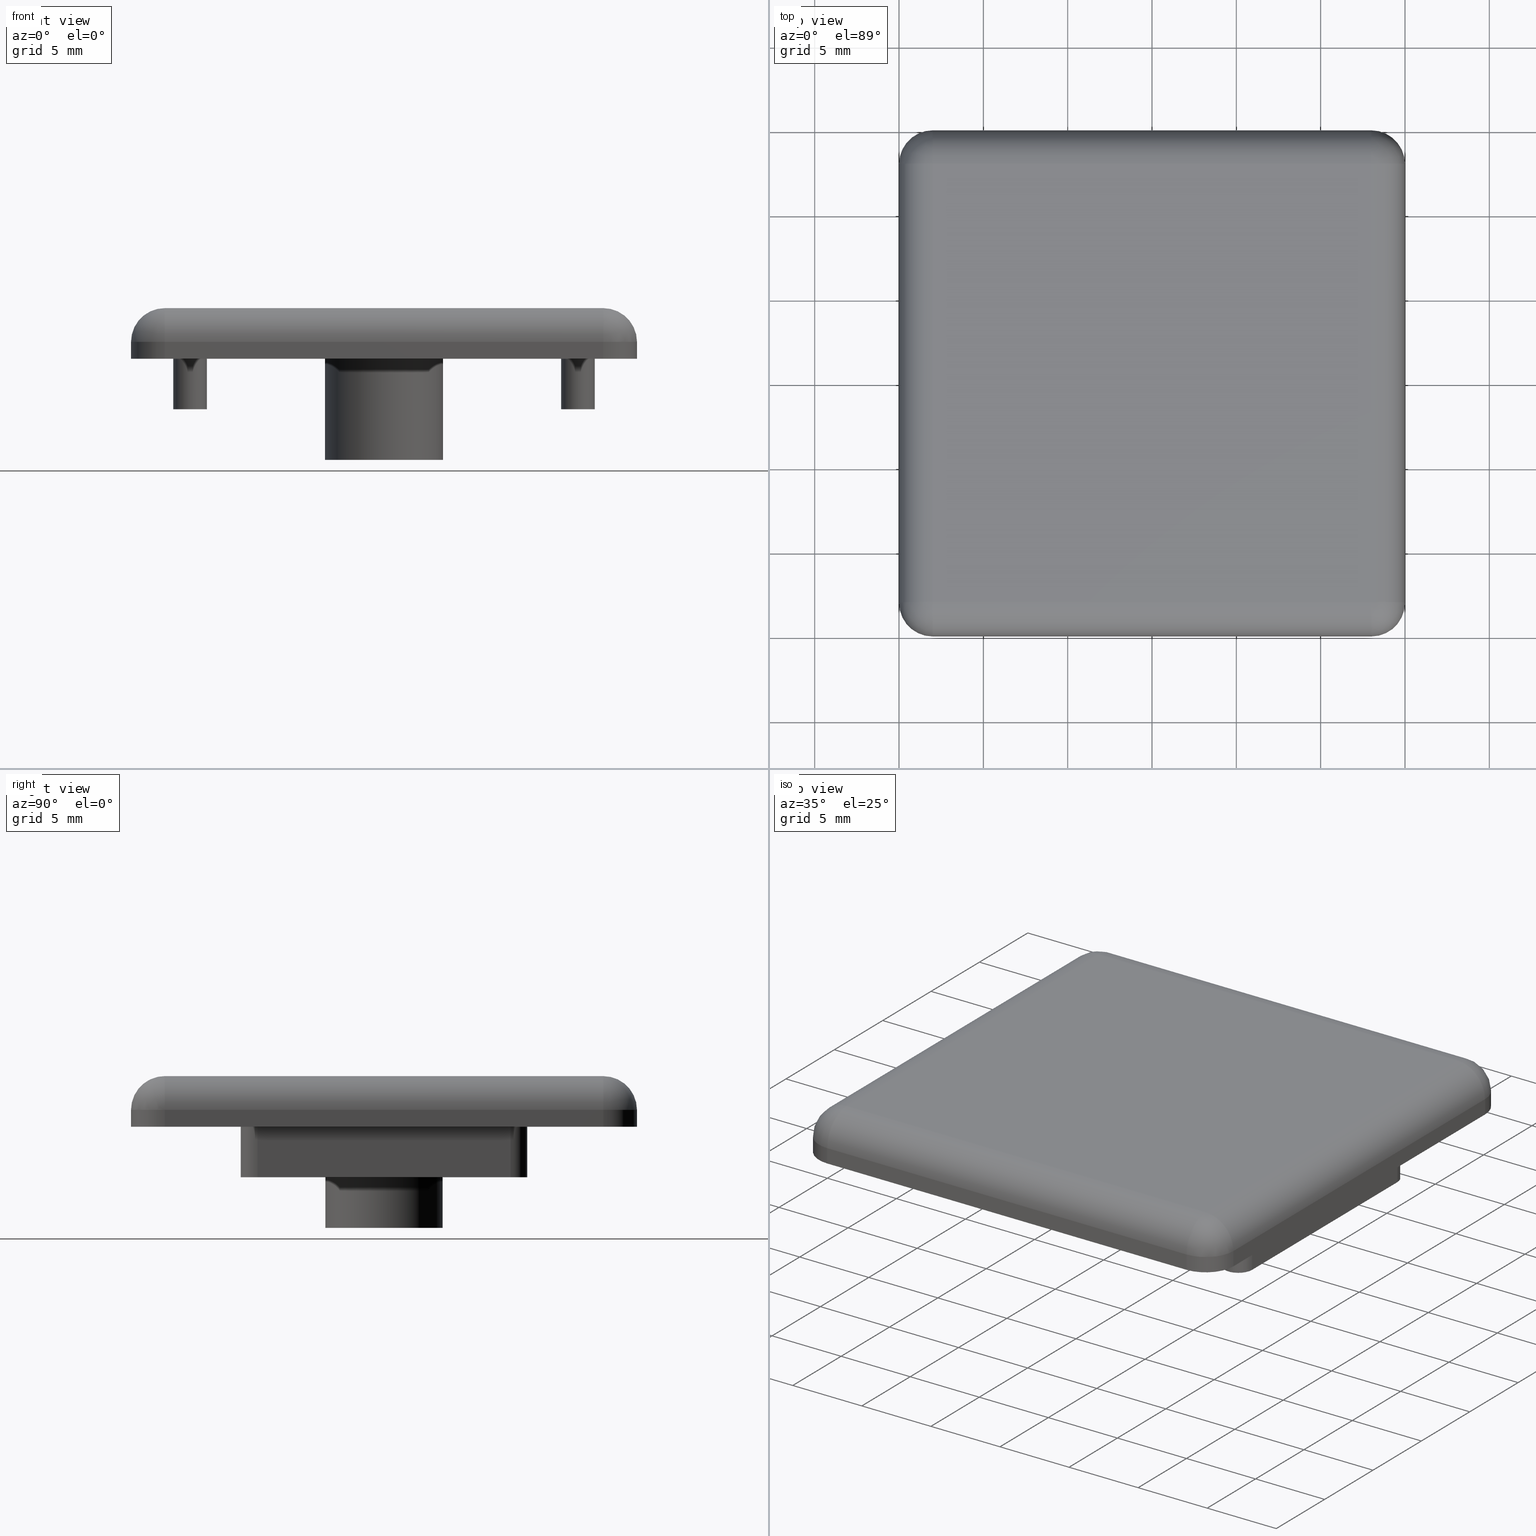
[diagram: canonical four-view strip — front | top / right | iso, engineering-drawing reading convention]
A machine part, canonical four-view strip (front | top / right | iso — engineering-drawing reading convention). The complete STEP part file that produces these views, byte-faithful:
ISO-10303-21;
HEADER;
/* Generated by software containing ST-Developer
 * from STEP Tools, Inc. (www.steptools.com) 
 */

FILE_DESCRIPTION(
/* description */ ('TAPPO 30X30 4C NERO'),
/* implementation_level */ '2;1');

FILE_NAME(
/* name */ 
'Q:\\Catalogo\\2_Accessori Dierre\\Per Download Web e catalogo cartace
o\\CATALOGO TAPPI DI CHIUSURA\\PAGINA 88\\DTPTR0000022_.stp',
/* time_stamp */ '2018-10-26T10:26:14+02:00',
/* author */ ('fzagni'),
/* organization */ (''),
/* preprocessor_version */ 'ST-DEVELOPER v16.1',
/* originating_system */ 'Autodesk Inventor 2016',
/* authorisation */ '');

FILE_SCHEMA (('AUTOMOTIVE_DESIGN { 1 0 10303 214 3 1 1 }'));
ENDSEC;

DATA;
#10=MECHANICAL_DESIGN_GEOMETRIC_PRESENTATION_REPRESENTATION('',(#13),#847);
#11=SHAPE_REPRESENTATION_RELATIONSHIP('SRR','None',#856,#12);
#12=ADVANCED_BREP_SHAPE_REPRESENTATION('',(#14),#846);
#13=STYLED_ITEM('',(#865),#14);
#14=MANIFOLD_SOLID_BREP('Solido1',#487);
#15=SPHERICAL_SURFACE('',#519,2.);
#16=SPHERICAL_SURFACE('',#524,2.);
#17=SPHERICAL_SURFACE('',#529,2.);
#18=SPHERICAL_SURFACE('',#535,2.);
#19=LINE('',#724,#55);
#20=LINE('',#728,#56);
#21=LINE('',#732,#57);
#22=LINE('',#735,#58);
#23=LINE('',#740,#59);
#24=LINE('',#743,#60);
#25=LINE('',#748,#61);
#26=LINE('',#751,#62);
#27=LINE('',#754,#63);
#28=LINE('',#757,#64);
#29=LINE('',#760,#65);
#30=LINE('',#761,#66);
#31=LINE('',#765,#67);
#32=LINE('',#767,#68);
#33=LINE('',#771,#69);
#34=LINE('',#774,#70);
#35=LINE('',#777,#71);
#36=LINE('',#778,#72);
#37=LINE('',#782,#73);
#38=LINE('',#784,#74);
#39=LINE('',#794,#75);
#40=LINE('',#795,#76);
#41=LINE('',#804,#77);
#42=LINE('',#805,#78);
#43=LINE('',#814,#79);
#44=LINE('',#815,#80);
#45=LINE('',#817,#81);
#46=LINE('',#818,#82);
#47=LINE('',#827,#83);
#48=LINE('',#828,#84);
#49=LINE('',#830,#85);
#50=LINE('',#831,#86);
#51=LINE('',#833,#87);
#52=LINE('',#834,#88);
#53=LINE('',#836,#89);
#54=LINE('',#837,#90);
#55=VECTOR('',#569,26.);
#56=VECTOR('',#572,26.);
#57=VECTOR('',#575,26.);
#58=VECTOR('',#578,26.);
#59=VECTOR('',#581,15.);
#60=VECTOR('',#584,15.);
#61=VECTOR('',#587,15.);
#62=VECTOR('',#590,15.);
#63=VECTOR('',#593,3.);
#64=VECTOR('',#596,3.);
#65=VECTOR('',#599,15.);
#66=VECTOR('',#600,3.);
#67=VECTOR('',#605,3.);
#68=VECTOR('',#608,15.);
#69=VECTOR('',#613,3.);
#70=VECTOR('',#616,3.);
#71=VECTOR('',#619,15.);
#72=VECTOR('',#620,3.);
#73=VECTOR('',#625,3.);
#74=VECTOR('',#628,15.);
#75=VECTOR('',#641,1.);
#76=VECTOR('',#642,1.);
#77=VECTOR('',#653,1.);
#78=VECTOR('',#654,1.);
#79=VECTOR('',#665,1.);
#80=VECTOR('',#666,1.);
#81=VECTOR('',#669,26.);
#82=VECTOR('',#670,26.);
#83=VECTOR('',#681,1.);
#84=VECTOR('',#682,1.);
#85=VECTOR('',#685,26.);
#86=VECTOR('',#686,26.);
#87=VECTOR('',#689,26.);
#88=VECTOR('',#690,26.);
#89=VECTOR('',#693,26.);
#90=VECTOR('',#694,26.);
#91=PLANE('',#495);
#92=PLANE('',#496);
#93=PLANE('',#507);
#94=PLANE('',#510);
#95=PLANE('',#511);
#96=PLANE('',#514);
#97=PLANE('',#517);
#98=PLANE('',#518);
#99=PLANE('',#543);
#100=PLANE('',#544);
#101=PLANE('',#545);
#102=PLANE('',#546);
#103=PLANE('',#547);
#104=PLANE('',#548);
#105=FACE_BOUND('',#144,.T.);
#106=FACE_BOUND('',#146,.T.);
#107=FACE_BOUND('',#148,.T.);
#108=FACE_BOUND('',#150,.T.);
#109=FACE_BOUND('',#151,.T.);
#110=FACE_BOUND('',#152,.T.);
#111=FACE_OUTER_BOUND('',#143,.T.);
#112=FACE_OUTER_BOUND('',#145,.T.);
#113=FACE_OUTER_BOUND('',#147,.T.);
#114=FACE_OUTER_BOUND('',#149,.T.);
#115=FACE_OUTER_BOUND('',#153,.T.);
#116=FACE_OUTER_BOUND('',#154,.T.);
#117=FACE_OUTER_BOUND('',#155,.T.);
#118=FACE_OUTER_BOUND('',#156,.T.);
#119=FACE_OUTER_BOUND('',#157,.T.);
#120=FACE_OUTER_BOUND('',#158,.T.);
#121=FACE_OUTER_BOUND('',#159,.T.);
#122=FACE_OUTER_BOUND('',#160,.T.);
#123=FACE_OUTER_BOUND('',#161,.T.);
#124=FACE_OUTER_BOUND('',#162,.T.);
#125=FACE_OUTER_BOUND('',#163,.T.);
#126=FACE_OUTER_BOUND('',#164,.T.);
#127=FACE_OUTER_BOUND('',#165,.T.);
#128=FACE_OUTER_BOUND('',#166,.T.);
#129=FACE_OUTER_BOUND('',#167,.T.);
#130=FACE_OUTER_BOUND('',#168,.T.);
#131=FACE_OUTER_BOUND('',#169,.T.);
#132=FACE_OUTER_BOUND('',#170,.T.);
#133=FACE_OUTER_BOUND('',#171,.T.);
#134=FACE_OUTER_BOUND('',#172,.T.);
#135=FACE_OUTER_BOUND('',#173,.T.);
#136=FACE_OUTER_BOUND('',#174,.T.);
#137=FACE_OUTER_BOUND('',#175,.T.);
#138=FACE_OUTER_BOUND('',#176,.T.);
#139=FACE_OUTER_BOUND('',#177,.T.);
#140=FACE_OUTER_BOUND('',#178,.T.);
#141=FACE_OUTER_BOUND('',#179,.T.);
#142=FACE_OUTER_BOUND('',#180,.T.);
#143=EDGE_LOOP('',(#313));
#144=EDGE_LOOP('',(#314));
#145=EDGE_LOOP('',(#315));
#146=EDGE_LOOP('',(#316));
#147=EDGE_LOOP('',(#317));
#148=EDGE_LOOP('',(#318));
#149=EDGE_LOOP('',(#319,#320,#321,#322,#323,#324,#325,#326));
#150=EDGE_LOOP('',(#327,#328,#329,#330));
#151=EDGE_LOOP('',(#331,#332,#333,#334));
#152=EDGE_LOOP('',(#335));
#153=EDGE_LOOP('',(#336,#337,#338,#339));
#154=EDGE_LOOP('',(#340,#341,#342,#343));
#155=EDGE_LOOP('',(#344,#345,#346,#347));
#156=EDGE_LOOP('',(#348,#349,#350,#351));
#157=EDGE_LOOP('',(#352,#353,#354,#355));
#158=EDGE_LOOP('',(#356,#357,#358,#359));
#159=EDGE_LOOP('',(#360,#361,#362,#363));
#160=EDGE_LOOP('',(#364,#365,#366,#367));
#161=EDGE_LOOP('',(#368,#369,#370,#371));
#162=EDGE_LOOP('',(#372,#373,#374,#375));
#163=EDGE_LOOP('',(#376,#377,#378));
#164=EDGE_LOOP('',(#379,#380,#381,#382));
#165=EDGE_LOOP('',(#383,#384,#385));
#166=EDGE_LOOP('',(#386,#387,#388,#389));
#167=EDGE_LOOP('',(#390,#391,#392));
#168=EDGE_LOOP('',(#393,#394,#395,#396));
#169=EDGE_LOOP('',(#397,#398,#399,#400));
#170=EDGE_LOOP('',(#401,#402,#403));
#171=EDGE_LOOP('',(#404,#405,#406,#407));
#172=EDGE_LOOP('',(#408,#409,#410,#411));
#173=EDGE_LOOP('',(#412,#413,#414,#415));
#174=EDGE_LOOP('',(#416,#417,#418,#419));
#175=EDGE_LOOP('',(#420,#421,#422,#423));
#176=EDGE_LOOP('',(#424,#425,#426,#427));
#177=EDGE_LOOP('',(#428));
#178=EDGE_LOOP('',(#429,#430,#431,#432));
#179=EDGE_LOOP('',(#433,#434,#435,#436));
#180=EDGE_LOOP('',(#437,#438,#439,#440));
#181=CIRCLE('',#490,3.);
#182=CIRCLE('',#491,3.);
#183=CIRCLE('',#493,3.5);
#184=CIRCLE('',#494,3.5);
#185=CIRCLE('',#497,2.);
#186=CIRCLE('',#498,2.);
#187=CIRCLE('',#499,2.);
#188=CIRCLE('',#500,2.);
#189=CIRCLE('',#501,1.);
#190=CIRCLE('',#502,1.);
#191=CIRCLE('',#503,1.);
#192=CIRCLE('',#504,1.);
#193=CIRCLE('',#506,1.);
#194=CIRCLE('',#509,1.);
#195=CIRCLE('',#513,1.);
#196=CIRCLE('',#516,1.);
#197=CIRCLE('',#520,2.);
#198=CIRCLE('',#521,2.);
#199=CIRCLE('',#522,2.);
#200=CIRCLE('',#525,2.);
#201=CIRCLE('',#526,2.);
#202=CIRCLE('',#527,2.);
#203=CIRCLE('',#530,2.);
#204=CIRCLE('',#531,2.);
#205=CIRCLE('',#532,2.);
#206=CIRCLE('',#536,2.);
#207=CIRCLE('',#537,2.);
#208=CIRCLE('',#538,2.);
#209=VERTEX_POINT('',#709);
#210=VERTEX_POINT('',#711);
#211=VERTEX_POINT('',#714);
#212=VERTEX_POINT('',#716);
#213=VERTEX_POINT('',#720);
#214=VERTEX_POINT('',#721);
#215=VERTEX_POINT('',#723);
#216=VERTEX_POINT('',#725);
#217=VERTEX_POINT('',#727);
#218=VERTEX_POINT('',#729);
#219=VERTEX_POINT('',#731);
#220=VERTEX_POINT('',#733);
#221=VERTEX_POINT('',#736);
#222=VERTEX_POINT('',#737);
#223=VERTEX_POINT('',#739);
#224=VERTEX_POINT('',#741);
#225=VERTEX_POINT('',#744);
#226=VERTEX_POINT('',#745);
#227=VERTEX_POINT('',#747);
#228=VERTEX_POINT('',#749);
#229=VERTEX_POINT('',#753);
#230=VERTEX_POINT('',#755);
#231=VERTEX_POINT('',#759);
#232=VERTEX_POINT('',#763);
#233=VERTEX_POINT('',#770);
#234=VERTEX_POINT('',#772);
#235=VERTEX_POINT('',#776);
#236=VERTEX_POINT('',#780);
#237=VERTEX_POINT('',#787);
#238=VERTEX_POINT('',#788);
#239=VERTEX_POINT('',#790);
#240=VERTEX_POINT('',#797);
#241=VERTEX_POINT('',#798);
#242=VERTEX_POINT('',#800);
#243=VERTEX_POINT('',#807);
#244=VERTEX_POINT('',#808);
#245=VERTEX_POINT('',#810);
#246=VERTEX_POINT('',#820);
#247=VERTEX_POINT('',#821);
#248=VERTEX_POINT('',#823);
#249=EDGE_CURVE('',#209,#209,#181,.T.);
#250=EDGE_CURVE('',#210,#210,#182,.T.);
#251=EDGE_CURVE('',#211,#211,#183,.T.);
#252=EDGE_CURVE('',#212,#212,#184,.T.);
#253=EDGE_CURVE('',#213,#214,#185,.T.);
#254=EDGE_CURVE('',#213,#215,#19,.T.);
#255=EDGE_CURVE('',#216,#215,#186,.T.);
#256=EDGE_CURVE('',#216,#217,#20,.T.);
#257=EDGE_CURVE('',#218,#217,#187,.T.);
#258=EDGE_CURVE('',#218,#219,#21,.T.);
#259=EDGE_CURVE('',#220,#219,#188,.T.);
#260=EDGE_CURVE('',#220,#214,#22,.T.);
#261=EDGE_CURVE('',#221,#222,#189,.T.);
#262=EDGE_CURVE('',#222,#223,#23,.T.);
#263=EDGE_CURVE('',#223,#224,#190,.T.);
#264=EDGE_CURVE('',#224,#221,#24,.T.);
#265=EDGE_CURVE('',#225,#226,#191,.T.);
#266=EDGE_CURVE('',#226,#227,#25,.T.);
#267=EDGE_CURVE('',#227,#228,#192,.T.);
#268=EDGE_CURVE('',#228,#225,#26,.T.);
#269=EDGE_CURVE('',#225,#229,#27,.T.);
#270=EDGE_CURVE('',#230,#229,#193,.T.);
#271=EDGE_CURVE('',#226,#230,#28,.T.);
#272=EDGE_CURVE('',#231,#230,#29,.T.);
#273=EDGE_CURVE('',#227,#231,#30,.T.);
#274=EDGE_CURVE('',#232,#231,#194,.T.);
#275=EDGE_CURVE('',#228,#232,#31,.T.);
#276=EDGE_CURVE('',#229,#232,#32,.T.);
#277=EDGE_CURVE('',#221,#233,#33,.T.);
#278=EDGE_CURVE('',#234,#233,#195,.T.);
#279=EDGE_CURVE('',#222,#234,#34,.T.);
#280=EDGE_CURVE('',#235,#234,#35,.T.);
#281=EDGE_CURVE('',#223,#235,#36,.T.);
#282=EDGE_CURVE('',#236,#235,#196,.T.);
#283=EDGE_CURVE('',#224,#236,#37,.T.);
#284=EDGE_CURVE('',#233,#236,#38,.T.);
#285=EDGE_CURVE('',#237,#238,#197,.F.);
#286=EDGE_CURVE('',#239,#237,#198,.F.);
#287=EDGE_CURVE('',#238,#239,#199,.F.);
#288=EDGE_CURVE('',#214,#239,#39,.T.);
#289=EDGE_CURVE('',#237,#213,#40,.T.);
#290=EDGE_CURVE('',#240,#241,#200,.F.);
#291=EDGE_CURVE('',#242,#240,#201,.F.);
#292=EDGE_CURVE('',#241,#242,#202,.F.);
#293=EDGE_CURVE('',#219,#242,#41,.T.);
#294=EDGE_CURVE('',#240,#220,#42,.T.);
#295=EDGE_CURVE('',#243,#244,#203,.F.);
#296=EDGE_CURVE('',#245,#243,#204,.F.);
#297=EDGE_CURVE('',#244,#245,#205,.F.);
#298=EDGE_CURVE('',#215,#245,#43,.T.);
#299=EDGE_CURVE('',#243,#216,#44,.T.);
#300=EDGE_CURVE('',#238,#244,#45,.T.);
#301=EDGE_CURVE('',#245,#237,#46,.T.);
#302=EDGE_CURVE('',#246,#247,#206,.F.);
#303=EDGE_CURVE('',#248,#246,#207,.F.);
#304=EDGE_CURVE('',#247,#248,#208,.F.);
#305=EDGE_CURVE('',#217,#248,#47,.T.);
#306=EDGE_CURVE('',#246,#218,#48,.T.);
#307=EDGE_CURVE('',#244,#247,#49,.T.);
#308=EDGE_CURVE('',#248,#243,#50,.T.);
#309=EDGE_CURVE('',#247,#241,#51,.T.);
#310=EDGE_CURVE('',#242,#246,#52,.T.);
#311=EDGE_CURVE('',#241,#238,#53,.T.);
#312=EDGE_CURVE('',#239,#240,#54,.T.);
#313=ORIENTED_EDGE('',*,*,#249,.F.);
#314=ORIENTED_EDGE('',*,*,#250,.F.);
#315=ORIENTED_EDGE('',*,*,#251,.F.);
#316=ORIENTED_EDGE('',*,*,#252,.F.);
#317=ORIENTED_EDGE('',*,*,#251,.T.);
#318=ORIENTED_EDGE('',*,*,#249,.T.);
#319=ORIENTED_EDGE('',*,*,#253,.F.);
#320=ORIENTED_EDGE('',*,*,#254,.T.);
#321=ORIENTED_EDGE('',*,*,#255,.F.);
#322=ORIENTED_EDGE('',*,*,#256,.T.);
#323=ORIENTED_EDGE('',*,*,#257,.F.);
#324=ORIENTED_EDGE('',*,*,#258,.T.);
#325=ORIENTED_EDGE('',*,*,#259,.F.);
#326=ORIENTED_EDGE('',*,*,#260,.T.);
#327=ORIENTED_EDGE('',*,*,#261,.T.);
#328=ORIENTED_EDGE('',*,*,#262,.T.);
#329=ORIENTED_EDGE('',*,*,#263,.T.);
#330=ORIENTED_EDGE('',*,*,#264,.T.);
#331=ORIENTED_EDGE('',*,*,#265,.T.);
#332=ORIENTED_EDGE('',*,*,#266,.T.);
#333=ORIENTED_EDGE('',*,*,#267,.T.);
#334=ORIENTED_EDGE('',*,*,#268,.T.);
#335=ORIENTED_EDGE('',*,*,#252,.T.);
#336=ORIENTED_EDGE('',*,*,#265,.F.);
#337=ORIENTED_EDGE('',*,*,#269,.T.);
#338=ORIENTED_EDGE('',*,*,#270,.F.);
#339=ORIENTED_EDGE('',*,*,#271,.F.);
#340=ORIENTED_EDGE('',*,*,#266,.F.);
#341=ORIENTED_EDGE('',*,*,#271,.T.);
#342=ORIENTED_EDGE('',*,*,#272,.F.);
#343=ORIENTED_EDGE('',*,*,#273,.F.);
#344=ORIENTED_EDGE('',*,*,#267,.F.);
#345=ORIENTED_EDGE('',*,*,#273,.T.);
#346=ORIENTED_EDGE('',*,*,#274,.F.);
#347=ORIENTED_EDGE('',*,*,#275,.F.);
#348=ORIENTED_EDGE('',*,*,#268,.F.);
#349=ORIENTED_EDGE('',*,*,#275,.T.);
#350=ORIENTED_EDGE('',*,*,#276,.F.);
#351=ORIENTED_EDGE('',*,*,#269,.F.);
#352=ORIENTED_EDGE('',*,*,#276,.T.);
#353=ORIENTED_EDGE('',*,*,#274,.T.);
#354=ORIENTED_EDGE('',*,*,#272,.T.);
#355=ORIENTED_EDGE('',*,*,#270,.T.);
#356=ORIENTED_EDGE('',*,*,#261,.F.);
#357=ORIENTED_EDGE('',*,*,#277,.T.);
#358=ORIENTED_EDGE('',*,*,#278,.F.);
#359=ORIENTED_EDGE('',*,*,#279,.F.);
#360=ORIENTED_EDGE('',*,*,#262,.F.);
#361=ORIENTED_EDGE('',*,*,#279,.T.);
#362=ORIENTED_EDGE('',*,*,#280,.F.);
#363=ORIENTED_EDGE('',*,*,#281,.F.);
#364=ORIENTED_EDGE('',*,*,#263,.F.);
#365=ORIENTED_EDGE('',*,*,#281,.T.);
#366=ORIENTED_EDGE('',*,*,#282,.F.);
#367=ORIENTED_EDGE('',*,*,#283,.F.);
#368=ORIENTED_EDGE('',*,*,#264,.F.);
#369=ORIENTED_EDGE('',*,*,#283,.T.);
#370=ORIENTED_EDGE('',*,*,#284,.F.);
#371=ORIENTED_EDGE('',*,*,#277,.F.);
#372=ORIENTED_EDGE('',*,*,#284,.T.);
#373=ORIENTED_EDGE('',*,*,#282,.T.);
#374=ORIENTED_EDGE('',*,*,#280,.T.);
#375=ORIENTED_EDGE('',*,*,#278,.T.);
#376=ORIENTED_EDGE('',*,*,#285,.F.);
#377=ORIENTED_EDGE('',*,*,#286,.F.);
#378=ORIENTED_EDGE('',*,*,#287,.F.);
#379=ORIENTED_EDGE('',*,*,#253,.T.);
#380=ORIENTED_EDGE('',*,*,#288,.T.);
#381=ORIENTED_EDGE('',*,*,#286,.T.);
#382=ORIENTED_EDGE('',*,*,#289,.T.);
#383=ORIENTED_EDGE('',*,*,#290,.F.);
#384=ORIENTED_EDGE('',*,*,#291,.F.);
#385=ORIENTED_EDGE('',*,*,#292,.F.);
#386=ORIENTED_EDGE('',*,*,#259,.T.);
#387=ORIENTED_EDGE('',*,*,#293,.T.);
#388=ORIENTED_EDGE('',*,*,#291,.T.);
#389=ORIENTED_EDGE('',*,*,#294,.T.);
#390=ORIENTED_EDGE('',*,*,#295,.F.);
#391=ORIENTED_EDGE('',*,*,#296,.F.);
#392=ORIENTED_EDGE('',*,*,#297,.F.);
#393=ORIENTED_EDGE('',*,*,#255,.T.);
#394=ORIENTED_EDGE('',*,*,#298,.T.);
#395=ORIENTED_EDGE('',*,*,#296,.T.);
#396=ORIENTED_EDGE('',*,*,#299,.T.);
#397=ORIENTED_EDGE('',*,*,#285,.T.);
#398=ORIENTED_EDGE('',*,*,#300,.T.);
#399=ORIENTED_EDGE('',*,*,#297,.T.);
#400=ORIENTED_EDGE('',*,*,#301,.T.);
#401=ORIENTED_EDGE('',*,*,#302,.F.);
#402=ORIENTED_EDGE('',*,*,#303,.F.);
#403=ORIENTED_EDGE('',*,*,#304,.F.);
#404=ORIENTED_EDGE('',*,*,#257,.T.);
#405=ORIENTED_EDGE('',*,*,#305,.T.);
#406=ORIENTED_EDGE('',*,*,#303,.T.);
#407=ORIENTED_EDGE('',*,*,#306,.T.);
#408=ORIENTED_EDGE('',*,*,#295,.T.);
#409=ORIENTED_EDGE('',*,*,#307,.T.);
#410=ORIENTED_EDGE('',*,*,#304,.T.);
#411=ORIENTED_EDGE('',*,*,#308,.T.);
#412=ORIENTED_EDGE('',*,*,#302,.T.);
#413=ORIENTED_EDGE('',*,*,#309,.T.);
#414=ORIENTED_EDGE('',*,*,#292,.T.);
#415=ORIENTED_EDGE('',*,*,#310,.T.);
#416=ORIENTED_EDGE('',*,*,#290,.T.);
#417=ORIENTED_EDGE('',*,*,#311,.T.);
#418=ORIENTED_EDGE('',*,*,#287,.T.);
#419=ORIENTED_EDGE('',*,*,#312,.T.);
#420=ORIENTED_EDGE('',*,*,#289,.F.);
#421=ORIENTED_EDGE('',*,*,#301,.F.);
#422=ORIENTED_EDGE('',*,*,#298,.F.);
#423=ORIENTED_EDGE('',*,*,#254,.F.);
#424=ORIENTED_EDGE('',*,*,#299,.F.);
#425=ORIENTED_EDGE('',*,*,#308,.F.);
#426=ORIENTED_EDGE('',*,*,#305,.F.);
#427=ORIENTED_EDGE('',*,*,#256,.F.);
#428=ORIENTED_EDGE('',*,*,#250,.T.);
#429=ORIENTED_EDGE('',*,*,#300,.F.);
#430=ORIENTED_EDGE('',*,*,#311,.F.);
#431=ORIENTED_EDGE('',*,*,#309,.F.);
#432=ORIENTED_EDGE('',*,*,#307,.F.);
#433=ORIENTED_EDGE('',*,*,#293,.F.);
#434=ORIENTED_EDGE('',*,*,#258,.F.);
#435=ORIENTED_EDGE('',*,*,#306,.F.);
#436=ORIENTED_EDGE('',*,*,#310,.F.);
#437=ORIENTED_EDGE('',*,*,#288,.F.);
#438=ORIENTED_EDGE('',*,*,#260,.F.);
#439=ORIENTED_EDGE('',*,*,#294,.F.);
#440=ORIENTED_EDGE('',*,*,#312,.F.);
#441=CYLINDRICAL_SURFACE('',#489,3.);
#442=CYLINDRICAL_SURFACE('',#492,3.5);
#443=CYLINDRICAL_SURFACE('',#505,1.);
#444=CYLINDRICAL_SURFACE('',#508,1.);
#445=CYLINDRICAL_SURFACE('',#512,1.);
#446=CYLINDRICAL_SURFACE('',#515,1.);
#447=CYLINDRICAL_SURFACE('',#523,2.);
#448=CYLINDRICAL_SURFACE('',#528,2.);
#449=CYLINDRICAL_SURFACE('',#533,2.);
#450=CYLINDRICAL_SURFACE('',#534,2.);
#451=CYLINDRICAL_SURFACE('',#539,2.);
#452=CYLINDRICAL_SURFACE('',#540,2.);
#453=CYLINDRICAL_SURFACE('',#541,2.);
#454=CYLINDRICAL_SURFACE('',#542,2.);
#455=ADVANCED_FACE('',(#111,#105),#441,.F.);
#456=ADVANCED_FACE('',(#112,#106),#442,.T.);
#457=ADVANCED_FACE('',(#113,#107),#91,.F.);
#458=ADVANCED_FACE('',(#114,#108,#109,#110),#92,.F.);
#459=ADVANCED_FACE('',(#115),#443,.T.);
#460=ADVANCED_FACE('',(#116),#93,.T.);
#461=ADVANCED_FACE('',(#117),#444,.T.);
#462=ADVANCED_FACE('',(#118),#94,.T.);
#463=ADVANCED_FACE('',(#119),#95,.F.);
#464=ADVANCED_FACE('',(#120),#445,.T.);
#465=ADVANCED_FACE('',(#121),#96,.T.);
#466=ADVANCED_FACE('',(#122),#446,.T.);
#467=ADVANCED_FACE('',(#123),#97,.T.);
#468=ADVANCED_FACE('',(#124),#98,.F.);
#469=ADVANCED_FACE('',(#125),#15,.T.);
#470=ADVANCED_FACE('',(#126),#447,.T.);
#471=ADVANCED_FACE('',(#127),#16,.T.);
#472=ADVANCED_FACE('',(#128),#448,.T.);
#473=ADVANCED_FACE('',(#129),#17,.T.);
#474=ADVANCED_FACE('',(#130),#449,.T.);
#475=ADVANCED_FACE('',(#131),#450,.T.);
#476=ADVANCED_FACE('',(#132),#18,.T.);
#477=ADVANCED_FACE('',(#133),#451,.T.);
#478=ADVANCED_FACE('',(#134),#452,.T.);
#479=ADVANCED_FACE('',(#135),#453,.T.);
#480=ADVANCED_FACE('',(#136),#454,.T.);
#481=ADVANCED_FACE('',(#137),#99,.T.);
#482=ADVANCED_FACE('',(#138),#100,.T.);
#483=ADVANCED_FACE('',(#139),#101,.F.);
#484=ADVANCED_FACE('',(#140),#102,.T.);
#485=ADVANCED_FACE('',(#141),#103,.T.);
#486=ADVANCED_FACE('',(#142),#104,.T.);
#487=CLOSED_SHELL('',(#455,#456,#457,#458,#459,#460,#461,#462,#463,#464,
#465,#466,#467,#468,#469,#470,#471,#472,#473,#474,#475,#476,#477,#478,#479,
#480,#481,#482,#483,#484,#485,#486));
#488=AXIS2_PLACEMENT_3D('placement',#707,#549,#550);
#489=AXIS2_PLACEMENT_3D('',#708,#551,#552);
#490=AXIS2_PLACEMENT_3D('',#710,#553,#554);
#491=AXIS2_PLACEMENT_3D('',#712,#555,#556);
#492=AXIS2_PLACEMENT_3D('',#713,#557,#558);
#493=AXIS2_PLACEMENT_3D('',#715,#559,#560);
#494=AXIS2_PLACEMENT_3D('',#717,#561,#562);
#495=AXIS2_PLACEMENT_3D('',#718,#563,#564);
#496=AXIS2_PLACEMENT_3D('',#719,#565,#566);
#497=AXIS2_PLACEMENT_3D('',#722,#567,#568);
#498=AXIS2_PLACEMENT_3D('',#726,#570,#571);
#499=AXIS2_PLACEMENT_3D('',#730,#573,#574);
#500=AXIS2_PLACEMENT_3D('',#734,#576,#577);
#501=AXIS2_PLACEMENT_3D('',#738,#579,#580);
#502=AXIS2_PLACEMENT_3D('',#742,#582,#583);
#503=AXIS2_PLACEMENT_3D('',#746,#585,#586);
#504=AXIS2_PLACEMENT_3D('',#750,#588,#589);
#505=AXIS2_PLACEMENT_3D('',#752,#591,#592);
#506=AXIS2_PLACEMENT_3D('',#756,#594,#595);
#507=AXIS2_PLACEMENT_3D('',#758,#597,#598);
#508=AXIS2_PLACEMENT_3D('',#762,#601,#602);
#509=AXIS2_PLACEMENT_3D('',#764,#603,#604);
#510=AXIS2_PLACEMENT_3D('',#766,#606,#607);
#511=AXIS2_PLACEMENT_3D('',#768,#609,#610);
#512=AXIS2_PLACEMENT_3D('',#769,#611,#612);
#513=AXIS2_PLACEMENT_3D('',#773,#614,#615);
#514=AXIS2_PLACEMENT_3D('',#775,#617,#618);
#515=AXIS2_PLACEMENT_3D('',#779,#621,#622);
#516=AXIS2_PLACEMENT_3D('',#781,#623,#624);
#517=AXIS2_PLACEMENT_3D('',#783,#626,#627);
#518=AXIS2_PLACEMENT_3D('',#785,#629,#630);
#519=AXIS2_PLACEMENT_3D('',#786,#631,#632);
#520=AXIS2_PLACEMENT_3D('',#789,#633,#634);
#521=AXIS2_PLACEMENT_3D('',#791,#635,#636);
#522=AXIS2_PLACEMENT_3D('',#792,#637,#638);
#523=AXIS2_PLACEMENT_3D('',#793,#639,#640);
#524=AXIS2_PLACEMENT_3D('',#796,#643,#644);
#525=AXIS2_PLACEMENT_3D('',#799,#645,#646);
#526=AXIS2_PLACEMENT_3D('',#801,#647,#648);
#527=AXIS2_PLACEMENT_3D('',#802,#649,#650);
#528=AXIS2_PLACEMENT_3D('',#803,#651,#652);
#529=AXIS2_PLACEMENT_3D('',#806,#655,#656);
#530=AXIS2_PLACEMENT_3D('',#809,#657,#658);
#531=AXIS2_PLACEMENT_3D('',#811,#659,#660);
#532=AXIS2_PLACEMENT_3D('',#812,#661,#662);
#533=AXIS2_PLACEMENT_3D('',#813,#663,#664);
#534=AXIS2_PLACEMENT_3D('',#816,#667,#668);
#535=AXIS2_PLACEMENT_3D('',#819,#671,#672);
#536=AXIS2_PLACEMENT_3D('',#822,#673,#674);
#537=AXIS2_PLACEMENT_3D('',#824,#675,#676);
#538=AXIS2_PLACEMENT_3D('',#825,#677,#678);
#539=AXIS2_PLACEMENT_3D('',#826,#679,#680);
#540=AXIS2_PLACEMENT_3D('',#829,#683,#684);
#541=AXIS2_PLACEMENT_3D('',#832,#687,#688);
#542=AXIS2_PLACEMENT_3D('',#835,#691,#692);
#543=AXIS2_PLACEMENT_3D('',#838,#695,#696);
#544=AXIS2_PLACEMENT_3D('',#839,#697,#698);
#545=AXIS2_PLACEMENT_3D('',#840,#699,#700);
#546=AXIS2_PLACEMENT_3D('',#841,#701,#702);
#547=AXIS2_PLACEMENT_3D('',#842,#703,#704);
#548=AXIS2_PLACEMENT_3D('',#843,#705,#706);
#549=DIRECTION('axis',(0.,0.,1.));
#550=DIRECTION('refdir',(1.,0.,0.));
#551=DIRECTION('center_axis',(0.,0.,-1.));
#552=DIRECTION('ref_axis',(1.,0.,0.));
#553=DIRECTION('center_axis',(0.,0.,1.));
#554=DIRECTION('ref_axis',(1.,0.,0.));
#555=DIRECTION('center_axis',(0.,0.,-1.));
#556=DIRECTION('ref_axis',(1.,0.,0.));
#557=DIRECTION('center_axis',(0.,0.,-1.));
#558=DIRECTION('ref_axis',(1.,0.,0.));
#559=DIRECTION('center_axis',(0.,0.,-1.));
#560=DIRECTION('ref_axis',(1.,0.,0.));
#561=DIRECTION('center_axis',(0.,0.,1.));
#562=DIRECTION('ref_axis',(1.,0.,0.));
#563=DIRECTION('center_axis',(0.,0.,1.));
#564=DIRECTION('ref_axis',(1.,0.,0.));
#565=DIRECTION('center_axis',(0.,0.,1.));
#566=DIRECTION('ref_axis',(1.,0.,0.));
#567=DIRECTION('center_axis',(0.,0.,1.));
#568=DIRECTION('ref_axis',(0.707106781186548,0.707106781186548,0.));
#569=DIRECTION('',(0.,-1.,0.));
#570=DIRECTION('center_axis',(0.,0.,1.));
#571=DIRECTION('ref_axis',(0.707106781186548,-0.707106781186548,0.));
#572=DIRECTION('',(-1.,-7.40148683083438E-17,0.));
#573=DIRECTION('center_axis',(0.,0.,1.));
#574=DIRECTION('ref_axis',(-0.707106781186548,-0.707106781186548,0.));
#575=DIRECTION('',(0.,1.,0.));
#576=DIRECTION('center_axis',(0.,0.,1.));
#577=DIRECTION('ref_axis',(-0.707106781186547,0.707106781186548,0.));
#578=DIRECTION('',(1.,2.96059473233375E-16,0.));
#579=DIRECTION('center_axis',(0.,0.,1.));
#580=DIRECTION('ref_axis',(1.,0.,0.));
#581=DIRECTION('',(0.,-1.,0.));
#582=DIRECTION('center_axis',(0.,0.,1.));
#583=DIRECTION('ref_axis',(-1.,0.,0.));
#584=DIRECTION('',(0.,1.,0.));
#585=DIRECTION('center_axis',(0.,0.,1.));
#586=DIRECTION('ref_axis',(1.,0.,0.));
#587=DIRECTION('',(0.,1.,0.));
#588=DIRECTION('center_axis',(0.,0.,1.));
#589=DIRECTION('ref_axis',(-1.,0.,0.));
#590=DIRECTION('',(0.,-1.,0.));
#591=DIRECTION('center_axis',(0.,0.,-1.));
#592=DIRECTION('ref_axis',(1.,0.,0.));
#593=DIRECTION('',(0.,0.,-1.));
#594=DIRECTION('center_axis',(0.,0.,-1.));
#595=DIRECTION('ref_axis',(1.,0.,0.));
#596=DIRECTION('',(0.,0.,-1.));
#597=DIRECTION('center_axis',(1.,0.,0.));
#598=DIRECTION('ref_axis',(0.,-1.,0.));
#599=DIRECTION('',(0.,-1.,0.));
#600=DIRECTION('',(0.,0.,-1.));
#601=DIRECTION('center_axis',(0.,0.,-1.));
#602=DIRECTION('ref_axis',(-1.,0.,0.));
#603=DIRECTION('center_axis',(0.,0.,-1.));
#604=DIRECTION('ref_axis',(-1.,0.,0.));
#605=DIRECTION('',(0.,0.,-1.));
#606=DIRECTION('center_axis',(-1.,0.,0.));
#607=DIRECTION('ref_axis',(0.,1.,0.));
#608=DIRECTION('',(0.,1.,0.));
#609=DIRECTION('center_axis',(0.,0.,1.));
#610=DIRECTION('ref_axis',(1.,0.,0.));
#611=DIRECTION('center_axis',(0.,0.,-1.));
#612=DIRECTION('ref_axis',(1.,0.,0.));
#613=DIRECTION('',(0.,0.,-1.));
#614=DIRECTION('center_axis',(0.,0.,-1.));
#615=DIRECTION('ref_axis',(1.,0.,0.));
#616=DIRECTION('',(0.,0.,-1.));
#617=DIRECTION('center_axis',(-1.,0.,0.));
#618=DIRECTION('ref_axis',(0.,1.,0.));
#619=DIRECTION('',(0.,1.,0.));
#620=DIRECTION('',(0.,0.,-1.));
#621=DIRECTION('center_axis',(0.,0.,-1.));
#622=DIRECTION('ref_axis',(-1.,0.,0.));
#623=DIRECTION('center_axis',(0.,0.,-1.));
#624=DIRECTION('ref_axis',(-1.,0.,0.));
#625=DIRECTION('',(0.,0.,-1.));
#626=DIRECTION('center_axis',(1.,0.,0.));
#627=DIRECTION('ref_axis',(0.,-1.,0.));
#628=DIRECTION('',(0.,-1.,0.));
#629=DIRECTION('center_axis',(0.,0.,1.));
#630=DIRECTION('ref_axis',(1.,0.,0.));
#631=DIRECTION('center_axis',(0.408248290463863,0.408248290463862,-0.816496580927726));
#632=DIRECTION('ref_axis',(0.577350269189626,0.577350269189625,0.577350269189626));
#633=DIRECTION('center_axis',(0.,1.,0.));
#634=DIRECTION('ref_axis',(1.,0.,0.));
#635=DIRECTION('center_axis',(0.,0.,1.));
#636=DIRECTION('ref_axis',(0.,1.,0.));
#637=DIRECTION('center_axis',(1.,1.11022302462516E-15,0.));
#638=DIRECTION('ref_axis',(0.,0.,1.));
#639=DIRECTION('center_axis',(0.,0.,1.));
#640=DIRECTION('ref_axis',(0.707106781186548,0.707106781186548,0.));
#641=DIRECTION('',(0.,0.,1.));
#642=DIRECTION('',(0.,0.,-1.));
#643=DIRECTION('center_axis',(-0.408248290463863,-0.816496580927726,0.408248290463863));
#644=DIRECTION('ref_axis',(-0.577350269189625,0.577350269189626,0.577350269189626));
#645=DIRECTION('center_axis',(-1.,-1.11022302462516E-15,0.));
#646=DIRECTION('ref_axis',(-1.11022302462516E-15,1.,0.));
#647=DIRECTION('center_axis',(0.,0.,1.));
#648=DIRECTION('ref_axis',(-1.,0.,0.));
#649=DIRECTION('center_axis',(0.,1.,0.));
#650=DIRECTION('ref_axis',(0.,0.,1.));
#651=DIRECTION('center_axis',(0.,0.,1.));
#652=DIRECTION('ref_axis',(-0.707106781186547,0.707106781186548,0.));
#653=DIRECTION('',(0.,0.,1.));
#654=DIRECTION('',(0.,0.,-1.));
#655=DIRECTION('center_axis',(-0.408248290463862,-0.816496580927727,-0.408248290463862));
#656=DIRECTION('ref_axis',(0.577350269189626,-0.577350269189624,0.577350269189627));
#657=DIRECTION('center_axis',(1.,0.,0.));
#658=DIRECTION('ref_axis',(0.,-1.,0.));
#659=DIRECTION('center_axis',(0.,0.,1.));
#660=DIRECTION('ref_axis',(1.,0.,0.));
#661=DIRECTION('center_axis',(-1.11022302462516E-15,-1.,0.));
#662=DIRECTION('ref_axis',(0.,0.,1.));
#663=DIRECTION('center_axis',(0.,0.,1.));
#664=DIRECTION('ref_axis',(0.707106781186548,-0.707106781186548,0.));
#665=DIRECTION('',(0.,0.,1.));
#666=DIRECTION('',(0.,0.,-1.));
#667=DIRECTION('center_axis',(0.,1.,0.));
#668=DIRECTION('ref_axis',(0.707106781186547,0.,0.707106781186548));
#669=DIRECTION('',(0.,-1.,0.));
#670=DIRECTION('',(0.,1.,0.));
#671=DIRECTION('center_axis',(-0.408248290463863,-0.408248290463863,-0.816496580927726));
#672=DIRECTION('ref_axis',(-0.577350269189627,-0.577350269189626,0.577350269189625));
#673=DIRECTION('center_axis',(0.,-1.,0.));
#674=DIRECTION('ref_axis',(-1.,0.,0.));
#675=DIRECTION('center_axis',(0.,0.,1.));
#676=DIRECTION('ref_axis',(0.,-1.,0.));
#677=DIRECTION('center_axis',(-1.,-1.11022302462516E-15,0.));
#678=DIRECTION('ref_axis',(0.,0.,1.));
#679=DIRECTION('center_axis',(0.,0.,1.));
#680=DIRECTION('ref_axis',(-0.707106781186548,-0.707106781186548,0.));
#681=DIRECTION('',(0.,0.,1.));
#682=DIRECTION('',(0.,0.,-1.));
#683=DIRECTION('center_axis',(1.,7.40148683083438E-17,0.));
#684=DIRECTION('ref_axis',(0.,-0.707106781186548,0.707106781186547));
#685=DIRECTION('',(-1.,-7.40148683083438E-17,0.));
#686=DIRECTION('',(1.,7.40148683083438E-17,0.));
#687=DIRECTION('center_axis',(0.,-1.,0.));
#688=DIRECTION('ref_axis',(-0.707106781186547,0.,0.707106781186548));
#689=DIRECTION('',(0.,1.,0.));
#690=DIRECTION('',(0.,-1.,0.));
#691=DIRECTION('center_axis',(-1.,-2.96059473233375E-16,0.));
#692=DIRECTION('ref_axis',(-7.85046229341888E-16,0.707106781186547,0.707106781186548));
#693=DIRECTION('',(1.,2.96059473233375E-16,0.));
#694=DIRECTION('',(-1.,-2.96059473233375E-16,0.));
#695=DIRECTION('center_axis',(1.,0.,0.));
#696=DIRECTION('ref_axis',(0.,1.,0.));
#697=DIRECTION('center_axis',(7.40148683083438E-17,-1.,0.));
#698=DIRECTION('ref_axis',(1.,0.,0.));
#699=DIRECTION('center_axis',(0.,0.,1.));
#700=DIRECTION('ref_axis',(1.,0.,0.));
#701=DIRECTION('center_axis',(0.,0.,1.));
#702=DIRECTION('ref_axis',(1.,0.,0.));
#703=DIRECTION('center_axis',(-1.,0.,0.));
#704=DIRECTION('ref_axis',(0.,-1.,0.));
#705=DIRECTION('center_axis',(-2.96059473233375E-16,1.,0.));
#706=DIRECTION('ref_axis',(-1.,-3.5527136788005E-16,0.));
#707=CARTESIAN_POINT('',(0.,0.,0.));
#708=CARTESIAN_POINT('Origin',(0.,0.,0.));
#709=CARTESIAN_POINT('',(-3.,3.67394039744206E-16,-6.));
#710=CARTESIAN_POINT('Origin',(0.,0.,-6.));
#711=CARTESIAN_POINT('',(-3.,3.67394039744206E-16,0.));
#712=CARTESIAN_POINT('Origin',(0.,0.,0.));
#713=CARTESIAN_POINT('Origin',(0.,0.,0.));
#714=CARTESIAN_POINT('',(-3.5,4.28626379701574E-16,-6.));
#715=CARTESIAN_POINT('Origin',(0.,0.,-6.));
#716=CARTESIAN_POINT('',(-3.5,4.28626379701574E-16,0.));
#717=CARTESIAN_POINT('Origin',(0.,0.,0.));
#718=CARTESIAN_POINT('Origin',(1.67888272668602E-16,6.60847038467355E-17,
-6.));
#719=CARTESIAN_POINT('Origin',(-7.21644966006352E-15,7.7715611723761E-15,
0.));
#720=CARTESIAN_POINT('',(15.,13.,0.));
#721=CARTESIAN_POINT('',(13.,15.,0.));
#722=CARTESIAN_POINT('Origin',(13.,13.,0.));
#723=CARTESIAN_POINT('',(15.,-13.,0.));
#724=CARTESIAN_POINT('',(15.,15.,0.));
#725=CARTESIAN_POINT('',(13.,-15.,0.));
#726=CARTESIAN_POINT('Origin',(13.,-13.,0.));
#727=CARTESIAN_POINT('',(-13.,-15.,0.));
#728=CARTESIAN_POINT('',(15.,-15.,0.));
#729=CARTESIAN_POINT('',(-15.,-13.,0.));
#730=CARTESIAN_POINT('Origin',(-13.,-13.,0.));
#731=CARTESIAN_POINT('',(-15.,13.,0.));
#732=CARTESIAN_POINT('',(-15.,-15.,0.));
#733=CARTESIAN_POINT('',(-13.,15.,0.));
#734=CARTESIAN_POINT('Origin',(-13.,13.,0.));
#735=CARTESIAN_POINT('',(-15.,15.,0.));
#736=CARTESIAN_POINT('',(-10.5,7.5,0.));
#737=CARTESIAN_POINT('',(-12.5,7.5,0.));
#738=CARTESIAN_POINT('Origin',(-11.5,7.5,0.));
#739=CARTESIAN_POINT('',(-12.5,-7.5,0.));
#740=CARTESIAN_POINT('',(-12.5,-3.75,0.));
#741=CARTESIAN_POINT('',(-10.5,-7.5,0.));
#742=CARTESIAN_POINT('Origin',(-11.5,-7.5,0.));
#743=CARTESIAN_POINT('',(-10.5,3.75,0.));
#744=CARTESIAN_POINT('',(10.5,-7.5,0.));
#745=CARTESIAN_POINT('',(12.5,-7.5,0.));
#746=CARTESIAN_POINT('Origin',(11.5,-7.5,0.));
#747=CARTESIAN_POINT('',(12.5,7.5,0.));
#748=CARTESIAN_POINT('',(12.5,3.75,0.));
#749=CARTESIAN_POINT('',(10.5,7.5,0.));
#750=CARTESIAN_POINT('Origin',(11.5,7.5,0.));
#751=CARTESIAN_POINT('',(10.5,-3.75,0.));
#752=CARTESIAN_POINT('Origin',(11.5,-7.5,0.));
#753=CARTESIAN_POINT('',(10.5,-7.5,-3.));
#754=CARTESIAN_POINT('',(10.5,-7.5,0.));
#755=CARTESIAN_POINT('',(12.5,-7.5,-3.));
#756=CARTESIAN_POINT('Origin',(11.5,-7.5,-3.));
#757=CARTESIAN_POINT('',(12.5,-7.5,0.));
#758=CARTESIAN_POINT('Origin',(12.5,7.5,0.));
#759=CARTESIAN_POINT('',(12.5,7.5,-3.));
#760=CARTESIAN_POINT('',(12.5,7.5,-3.));
#761=CARTESIAN_POINT('',(12.5,7.5,0.));
#762=CARTESIAN_POINT('Origin',(11.5,7.5,0.));
#763=CARTESIAN_POINT('',(10.5,7.5,-3.));
#764=CARTESIAN_POINT('Origin',(11.5,7.5,-3.));
#765=CARTESIAN_POINT('',(10.5,7.5,0.));
#766=CARTESIAN_POINT('Origin',(10.5,-7.5,0.));
#767=CARTESIAN_POINT('',(10.5,-7.5,-3.));
#768=CARTESIAN_POINT('Origin',(11.5,0.,-3.));
#769=CARTESIAN_POINT('Origin',(-11.5,7.5,0.));
#770=CARTESIAN_POINT('',(-10.5,7.5,-3.));
#771=CARTESIAN_POINT('',(-10.5,7.5,0.));
#772=CARTESIAN_POINT('',(-12.5,7.5,-3.));
#773=CARTESIAN_POINT('Origin',(-11.5,7.5,-3.));
#774=CARTESIAN_POINT('',(-12.5,7.5,0.));
#775=CARTESIAN_POINT('Origin',(-12.5,-7.5,0.));
#776=CARTESIAN_POINT('',(-12.5,-7.5,-3.));
#777=CARTESIAN_POINT('',(-12.5,7.5,-3.));
#778=CARTESIAN_POINT('',(-12.5,-7.5,0.));
#779=CARTESIAN_POINT('Origin',(-11.5,-7.5,0.));
#780=CARTESIAN_POINT('',(-10.5,-7.5,-3.));
#781=CARTESIAN_POINT('Origin',(-11.5,-7.5,-3.));
#782=CARTESIAN_POINT('',(-10.5,-7.5,0.));
#783=CARTESIAN_POINT('Origin',(-10.5,7.5,0.));
#784=CARTESIAN_POINT('',(-10.5,-7.5,-3.));
#785=CARTESIAN_POINT('Origin',(-11.5,0.,-3.));
#786=CARTESIAN_POINT('Origin',(13.,13.,1.));
#787=CARTESIAN_POINT('',(15.,13.,1.));
#788=CARTESIAN_POINT('',(13.,13.,3.));
#789=CARTESIAN_POINT('Origin',(13.,13.,1.));
#790=CARTESIAN_POINT('',(13.,15.,1.));
#791=CARTESIAN_POINT('Origin',(13.,13.,1.));
#792=CARTESIAN_POINT('Origin',(13.,13.,1.));
#793=CARTESIAN_POINT('Origin',(13.,13.,0.));
#794=CARTESIAN_POINT('',(13.,15.,0.));
#795=CARTESIAN_POINT('',(15.,13.,0.));
#796=CARTESIAN_POINT('Origin',(-13.,13.,1.));
#797=CARTESIAN_POINT('',(-13.,15.,1.));
#798=CARTESIAN_POINT('',(-13.,13.,3.));
#799=CARTESIAN_POINT('Origin',(-13.,13.,1.));
#800=CARTESIAN_POINT('',(-15.,13.,1.));
#801=CARTESIAN_POINT('Origin',(-13.,13.,1.));
#802=CARTESIAN_POINT('Origin',(-13.,13.,1.));
#803=CARTESIAN_POINT('Origin',(-13.,13.,0.));
#804=CARTESIAN_POINT('',(-15.,13.,0.));
#805=CARTESIAN_POINT('',(-13.,15.,0.));
#806=CARTESIAN_POINT('Origin',(13.,-13.,1.));
#807=CARTESIAN_POINT('',(13.,-15.,1.));
#808=CARTESIAN_POINT('',(13.,-13.,3.));
#809=CARTESIAN_POINT('Origin',(13.,-13.,1.));
#810=CARTESIAN_POINT('',(15.,-13.,1.));
#811=CARTESIAN_POINT('Origin',(13.,-13.,1.));
#812=CARTESIAN_POINT('Origin',(13.,-13.,1.));
#813=CARTESIAN_POINT('Origin',(13.,-13.,0.));
#814=CARTESIAN_POINT('',(15.,-13.,0.));
#815=CARTESIAN_POINT('',(13.,-15.,0.));
#816=CARTESIAN_POINT('Origin',(13.,-7.49999999999999,1.));
#817=CARTESIAN_POINT('',(13.,-7.49999999999999,3.));
#818=CARTESIAN_POINT('',(15.,-7.49999999999999,1.));
#819=CARTESIAN_POINT('Origin',(-13.,-13.,1.));
#820=CARTESIAN_POINT('',(-15.,-13.,1.));
#821=CARTESIAN_POINT('',(-13.,-13.,3.));
#822=CARTESIAN_POINT('Origin',(-13.,-13.,1.));
#823=CARTESIAN_POINT('',(-13.,-15.,1.));
#824=CARTESIAN_POINT('Origin',(-13.,-13.,1.));
#825=CARTESIAN_POINT('Origin',(-13.,-13.,1.));
#826=CARTESIAN_POINT('Origin',(-13.,-13.,0.));
#827=CARTESIAN_POINT('',(-13.,-15.,0.));
#828=CARTESIAN_POINT('',(-15.,-13.,0.));
#829=CARTESIAN_POINT('Origin',(-7.50000000000001,-13.,1.));
#830=CARTESIAN_POINT('',(-7.50000000000001,-13.,3.));
#831=CARTESIAN_POINT('',(-7.50000000000001,-15.,1.));
#832=CARTESIAN_POINT('Origin',(-13.,7.5,1.));
#833=CARTESIAN_POINT('',(-13.,7.5,3.));
#834=CARTESIAN_POINT('',(-15.,7.5,1.));
#835=CARTESIAN_POINT('Origin',(7.49999999999999,13.,1.));
#836=CARTESIAN_POINT('',(7.49999999999999,13.,3.));
#837=CARTESIAN_POINT('',(7.49999999999999,15.,1.));
#838=CARTESIAN_POINT('Origin',(15.,-15.,0.));
#839=CARTESIAN_POINT('Origin',(-15.,-15.,0.));
#840=CARTESIAN_POINT('Origin',(-7.21644966006352E-15,7.7715611723761E-15,
0.));
#841=CARTESIAN_POINT('Origin',(-6.66133814775094E-15,8.88178419700125E-15,
3.));
#842=CARTESIAN_POINT('Origin',(-15.,15.,0.));
#843=CARTESIAN_POINT('Origin',(15.,15.,0.));
#844=UNCERTAINTY_MEASURE_WITH_UNIT(LENGTH_MEASURE(0.01),#848,
'DISTANCE_ACCURACY_VALUE',
'Maximum model space distance between geometric entities at asserted c
onnectivities');
#845=UNCERTAINTY_MEASURE_WITH_UNIT(LENGTH_MEASURE(1.E-6),#848,
'DISTANCE_ACCURACY_VALUE',
'Maximum model space distance between geometric entities at asserted c
onnectivities');
#846=(
GEOMETRIC_REPRESENTATION_CONTEXT(3)
GLOBAL_UNCERTAINTY_ASSIGNED_CONTEXT((#844))
GLOBAL_UNIT_ASSIGNED_CONTEXT((#848,#851,#849))
REPRESENTATION_CONTEXT('','3D')
);
#847=(
GEOMETRIC_REPRESENTATION_CONTEXT(3)
GLOBAL_UNCERTAINTY_ASSIGNED_CONTEXT((#845))
GLOBAL_UNIT_ASSIGNED_CONTEXT((#848,#851,#849))
REPRESENTATION_CONTEXT('','3D')
);
#848=(
LENGTH_UNIT()
NAMED_UNIT(*)
SI_UNIT(.MILLI.,.METRE.)
);
#849=(
NAMED_UNIT(*)
SI_UNIT($,.STERADIAN.)
SOLID_ANGLE_UNIT()
);
#850=DIMENSIONAL_EXPONENTS(0.,0.,0.,0.,0.,0.,0.);
#851=(
CONVERSION_BASED_UNIT('degree',#853)
NAMED_UNIT(#850)
PLANE_ANGLE_UNIT()
);
#852=(
NAMED_UNIT(*)
PLANE_ANGLE_UNIT()
SI_UNIT($,.RADIAN.)
);
#853=PLANE_ANGLE_MEASURE_WITH_UNIT(PLANE_ANGLE_MEASURE(0.01745329252),#852);
#854=SHAPE_DEFINITION_REPRESENTATION(#855,#856);
#855=PRODUCT_DEFINITION_SHAPE('',$,#858);
#856=SHAPE_REPRESENTATION('',(#488),#846);
#857=PRODUCT_DEFINITION_CONTEXT('part definition',#862,'design');
#858=PRODUCT_DEFINITION('DTPTR0000022','DTPTR0000022',#859,#857);
#859=PRODUCT_DEFINITION_FORMATION('','B',#864);
#860=PRODUCT_RELATED_PRODUCT_CATEGORY('DTPTR0000022','DTPTR0000022',(#864));
#861=APPLICATION_PROTOCOL_DEFINITION('international standard',
'automotive_design',2009,#862);
#862=APPLICATION_CONTEXT(
'Core Data for Automotive Mechanical Design Process');
#863=PRODUCT_CONTEXT('part definition',#862,'mechanical');
#864=PRODUCT('DTPTR0000022','DTPTR0000022',$,(#863));
#865=PRESENTATION_STYLE_ASSIGNMENT((#866));
#866=SURFACE_STYLE_USAGE(.BOTH.,#867);
#867=SURFACE_SIDE_STYLE('',(#868));
#868=SURFACE_STYLE_FILL_AREA(#869);
#869=FILL_AREA_STYLE('',(#870));
#870=FILL_AREA_STYLE_COLOUR('',#871);
#871=COLOUR_RGB('',0.16078431372549,0.16078431372549,0.16078431372549);
ENDSEC;
END-ISO-10303-21;
